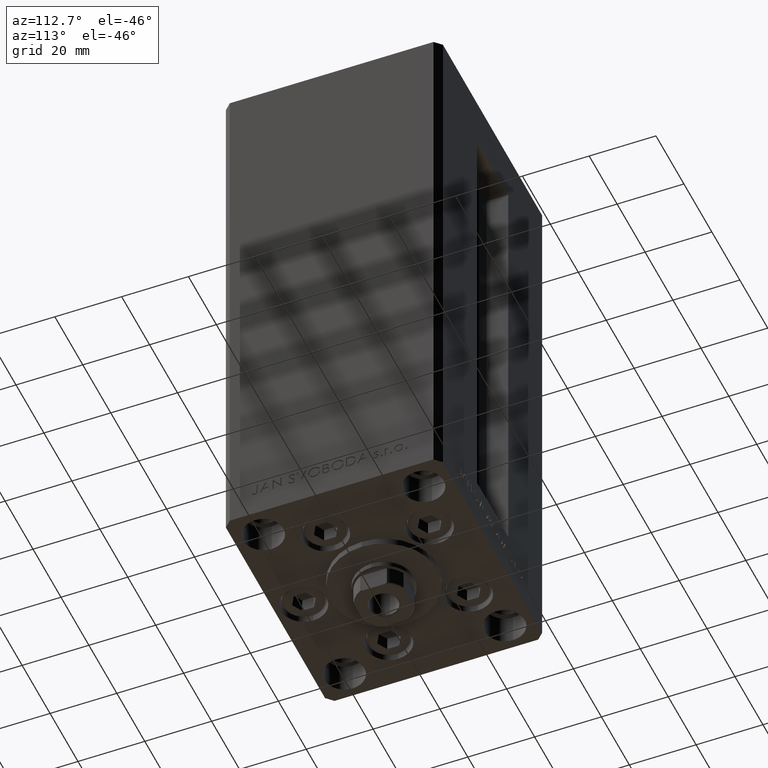
[diagram: clean part render]
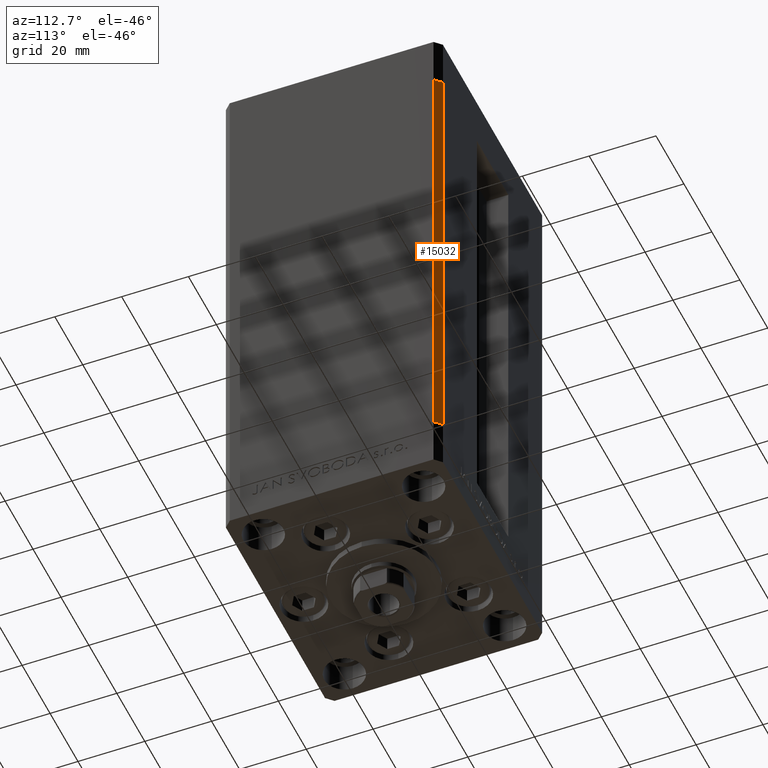
[diagram: same view with one face highlighted and labeled with its STEP entity id]
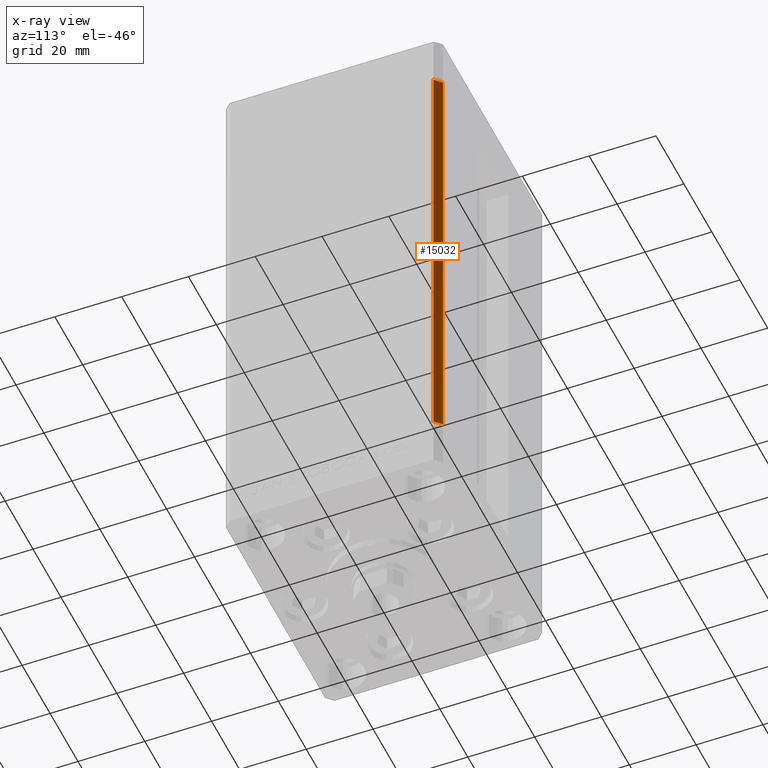
[diagram: x-ray of the same camera — body ghosted, the highlighted face saturated]
A machine part, auxiliary view. The second image highlights one B-rep face of the part: STEP entity #15032.
The next image is the same camera in x-ray: the body ghosted, the highlighted face saturated — about 0% of this face is hidden behind the body in this view.
In plain terms, the highlighted planar face has unit normal (0.7071, 0.7071, 0).
Its self-contained STEP definition (entity closure, byte-faithful):
#193 = DIRECTION ( 'NONE',  ( -0.7071067811865500152, 0.7071067811865451302, 0.000000000000000000 ) ) ;
#1819 = LINE ( 'NONE', #6018, #12449 ) ;
#3146 = LINE ( 'NONE', #14280, #20540 ) ;
#3781 = VERTEX_POINT ( 'NONE', #19194 ) ;
#6018 = CARTESIAN_POINT ( 'NONE',  ( 37.50000000000000711, 30.50000000000000000, 136.0000000000000000 ) ) ;
#6033 = DIRECTION ( 'NONE',  ( 0.7071067811865500152, -0.7071067811865451302, 0.000000000000000000 ) ) ;
#7194 = EDGE_CURVE ( 'NONE', #16428, #3781, #38159, .T. ) ;
#7511 = ORIENTED_EDGE ( 'NONE', *, *, #19948, .T. ) ;
#10816 = CARTESIAN_POINT ( 'NONE',  ( 35.50000000000000000, 32.49999999999999289, 136.0000000000000000 ) ) ;
#12449 = VECTOR ( 'NONE', #16888, 1000.000000000000000 ) ;
#13267 = ORIENTED_EDGE ( 'NONE', *, *, #7194, .F. ) ;
#13351 = EDGE_LOOP ( 'NONE', ( #38711, #13267, #18980, #7511 ) ) ;
#14280 = CARTESIAN_POINT ( 'NONE',  ( 35.50000000000000000, 32.49999999999999289, 0.000000000000000000 ) ) ;
#15032 = ADVANCED_FACE ( 'NONE', ( #37765 ), #26384, .T. ) ;
#16428 = VERTEX_POINT ( 'NONE', #24338 ) ;
#16888 = DIRECTION ( 'NONE',  ( -0.000000000000000000, -0.000000000000000000, -1.000000000000000000 ) ) ;
#16905 = CARTESIAN_POINT ( 'NONE',  ( 35.50000000000000000, 32.49999999999999289, 136.0000000000000000 ) ) ;
#17389 = LINE ( 'NONE', #16905, #24517 ) ;
#18250 = DIRECTION ( 'NONE',  ( 0.7071067811865451302, 0.7071067811865500152, -0.000000000000000000 ) ) ;
#18980 = ORIENTED_EDGE ( 'NONE', *, *, #31566, .T. ) ;
#19194 = CARTESIAN_POINT ( 'NONE',  ( 35.50000000000000000, 32.49999999999999289, 0.000000000000000000 ) ) ;
#19948 = EDGE_CURVE ( 'NONE', #47557, #25415, #1819, .T. ) ;
#20540 = VECTOR ( 'NONE', #33307, 1000.000000000000114 ) ;
#24338 = CARTESIAN_POINT ( 'NONE',  ( 35.50000000000000000, 32.49999999999999289, 136.0000000000000000 ) ) ;
#24517 = VECTOR ( 'NONE', #6033, 1000.000000000000114 ) ;
#25415 = VERTEX_POINT ( 'NONE', #48795 ) ;
#26384 = PLANE ( 'NONE',  #40371 ) ;
#31172 = EDGE_CURVE ( 'NONE', #3781, #25415, #3146, .T. ) ;
#31566 = EDGE_CURVE ( 'NONE', #16428, #47557, #17389, .T. ) ;
#33307 = DIRECTION ( 'NONE',  ( 0.7071067811865500152, -0.7071067811865451302, 0.000000000000000000 ) ) ;
#34299 = CARTESIAN_POINT ( 'NONE',  ( 37.50000000000000711, 30.50000000000000000, 136.0000000000000000 ) ) ;
#37765 = FACE_OUTER_BOUND ( 'NONE', #13351, .T. ) ;
#38159 = LINE ( 'NONE', #45850, #45720 ) ;
#38711 = ORIENTED_EDGE ( 'NONE', *, *, #31172, .F. ) ;
#40371 = AXIS2_PLACEMENT_3D ( 'NONE', #10816, #18250, #193 ) ;
#45124 = DIRECTION ( 'NONE',  ( -0.000000000000000000, -0.000000000000000000, -1.000000000000000000 ) ) ;
#45720 = VECTOR ( 'NONE', #45124, 1000.000000000000000 ) ;
#45850 = CARTESIAN_POINT ( 'NONE',  ( 35.50000000000000000, 32.49999999999999289, 136.0000000000000000 ) ) ;
#47557 = VERTEX_POINT ( 'NONE', #34299 ) ;
#48795 = CARTESIAN_POINT ( 'NONE',  ( 37.50000000000000711, 30.50000000000000000, 0.000000000000000000 ) ) ;